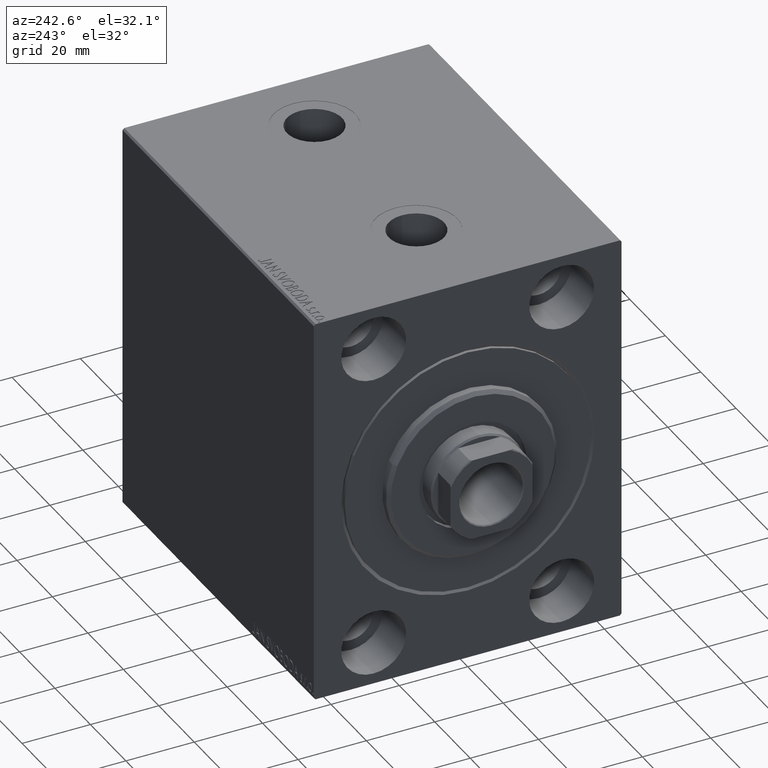
[diagram: clean part render]
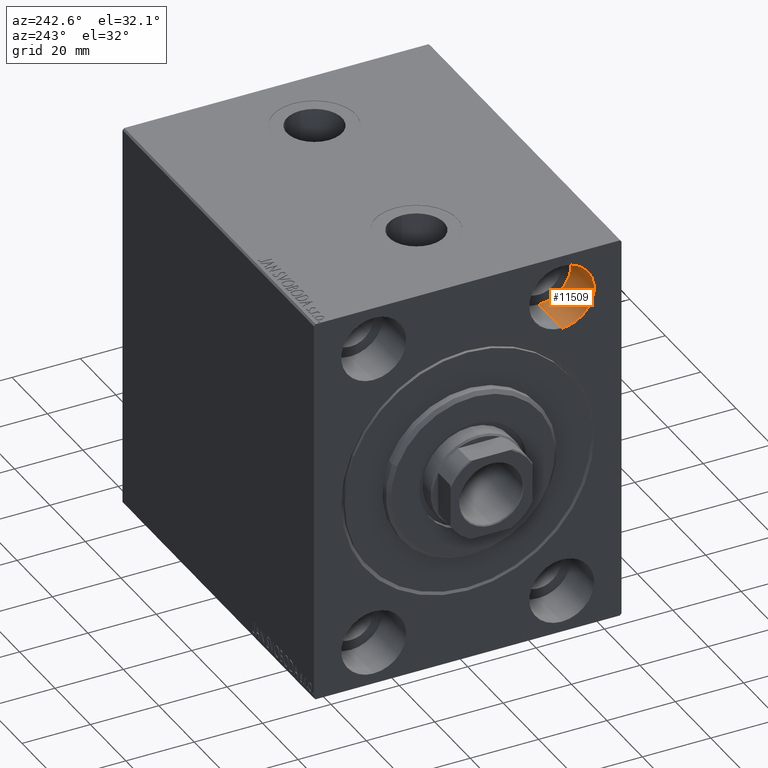
[diagram: same view with one face highlighted and labeled with its STEP entity id]
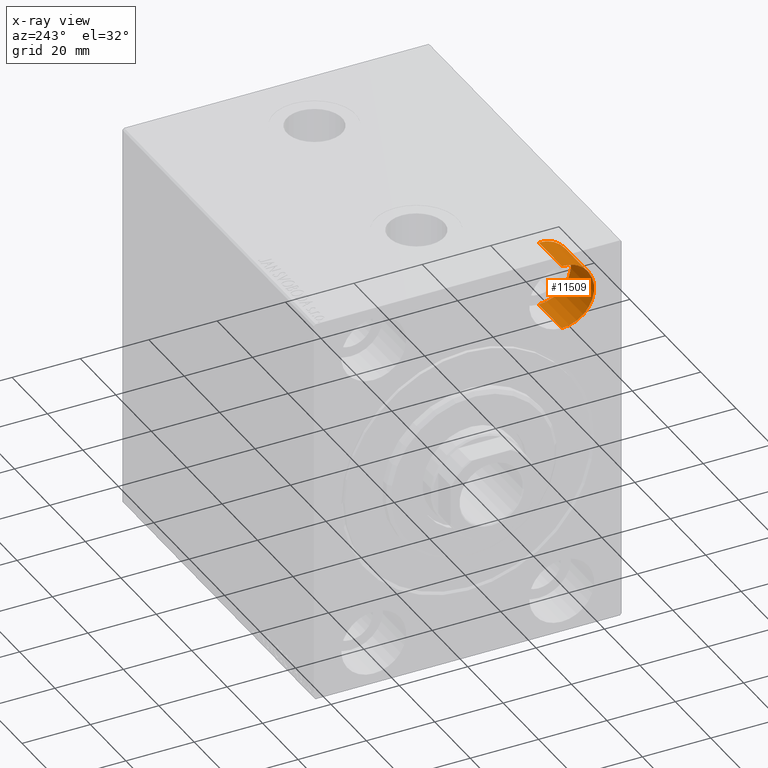
[diagram: x-ray of the same camera — body ghosted, the highlighted face saturated]
A machine part, auxiliary view. The second image highlights one B-rep face of the part: STEP entity #11509.
The next image is the same camera in x-ray: the body ghosted, the highlighted face saturated — about 0% of this face is hidden behind the body in this view.
In plain terms, the highlighted cylindrical surface (partial cylindrical patch) has radius 9.5 mm, axis along (-1, -0, -0).
Its self-contained STEP definition (entity closure, byte-faithful):
#1360 = CARTESIAN_POINT ( 'NONE',  ( 13.00000000000000000, -27.49999999999998934, 35.50000000000000711 ) ) ;
#2619 = LINE ( 'NONE', #26450, #34443 ) ;
#3070 = VERTEX_POINT ( 'NONE', #25599 ) ;
#4115 = CARTESIAN_POINT ( 'NONE',  ( 0.000000000000000000, -27.49999999999998934, 45.00000000000000711 ) ) ;
#6079 = VERTEX_POINT ( 'NONE', #30735 ) ;
#6403 = DIRECTION ( 'NONE',  ( -1.000000000000000000, -0.000000000000000000, -0.000000000000000000 ) ) ;
#8144 = AXIS2_PLACEMENT_3D ( 'NONE', #4115, #34875, #17714 ) ;
#8204 = EDGE_CURVE ( 'NONE', #12952, #10478, #20960, .T. ) ;
#10478 = VERTEX_POINT ( 'NONE', #25906 ) ;
#11509 = ADVANCED_FACE ( 'NONE', ( #23133 ), #30024, .F. ) ;
#12952 = VERTEX_POINT ( 'NONE', #36839 ) ;
#13820 = AXIS2_PLACEMENT_3D ( 'NONE', #19797, #6403, #20215 ) ;
#14483 = EDGE_CURVE ( 'NONE', #6079, #12952, #24761, .T. ) ;
#15176 = ORIENTED_EDGE ( 'NONE', *, *, #36618, .F. ) ;
#16754 = VECTOR ( 'NONE', #31890, 1000.000000000000000 ) ;
#17714 = DIRECTION ( 'NONE',  ( 0.000000000000000000, 0.000000000000000000, 1.000000000000000000 ) ) ;
#19102 = DIRECTION ( 'NONE',  ( -1.000000000000000000, 0.000000000000000000, 0.000000000000000000 ) ) ;
#19797 = CARTESIAN_POINT ( 'NONE',  ( 13.00000000000000000, -27.49999999999998934, 45.00000000000000711 ) ) ;
#20215 = DIRECTION ( 'NONE',  ( 0.000000000000000000, 0.000000000000000000, 1.000000000000000000 ) ) ;
#20960 = CIRCLE ( 'NONE', #8144, 9.500000000000001776 ) ;
#23133 = FACE_OUTER_BOUND ( 'NONE', #23797, .T. ) ;
#23314 = DIRECTION ( 'NONE',  ( 0.000000000000000000, 0.000000000000000000, 1.000000000000000000 ) ) ;
#23797 = EDGE_LOOP ( 'NONE', ( #26999, #38046, #36742, #15176 ) ) ;
#24761 = LINE ( 'NONE', #1360, #16754 ) ;
#25599 = CARTESIAN_POINT ( 'NONE',  ( 13.00000000000000000, -27.49999999999998934, 54.50000000000000711 ) ) ;
#25906 = CARTESIAN_POINT ( 'NONE',  ( 0.000000000000000000, -27.49999999999998934, 54.50000000000000711 ) ) ;
#26450 = CARTESIAN_POINT ( 'NONE',  ( 13.00000000000000000, -27.49999999999998934, 54.50000000000000711 ) ) ;
#26999 = ORIENTED_EDGE ( 'NONE', *, *, #39095, .F. ) ;
#29981 = CARTESIAN_POINT ( 'NONE',  ( 13.00000000000000000, -27.49999999999998934, 45.00000000000000711 ) ) ;
#30024 = CYLINDRICAL_SURFACE ( 'NONE', #13820, 9.500000000000001776 ) ;
#30735 = CARTESIAN_POINT ( 'NONE',  ( 13.00000000000000000, -27.49999999999998934, 35.50000000000000711 ) ) ;
#31890 = DIRECTION ( 'NONE',  ( -1.000000000000000000, -0.000000000000000000, -0.000000000000000000 ) ) ;
#33055 = CIRCLE ( 'NONE', #38748, 9.500000000000001776 ) ;
#34443 = VECTOR ( 'NONE', #40047, 1000.000000000000000 ) ;
#34875 = DIRECTION ( 'NONE',  ( -1.000000000000000000, 0.000000000000000000, 0.000000000000000000 ) ) ;
#36618 = EDGE_CURVE ( 'NONE', #3070, #10478, #2619, .T. ) ;
#36742 = ORIENTED_EDGE ( 'NONE', *, *, #8204, .T. ) ;
#36839 = CARTESIAN_POINT ( 'NONE',  ( 0.000000000000000000, -27.49999999999998934, 35.50000000000000711 ) ) ;
#38046 = ORIENTED_EDGE ( 'NONE', *, *, #14483, .T. ) ;
#38748 = AXIS2_PLACEMENT_3D ( 'NONE', #29981, #19102, #23314 ) ;
#39095 = EDGE_CURVE ( 'NONE', #6079, #3070, #33055, .T. ) ;
#40047 = DIRECTION ( 'NONE',  ( -1.000000000000000000, -0.000000000000000000, -0.000000000000000000 ) ) ;